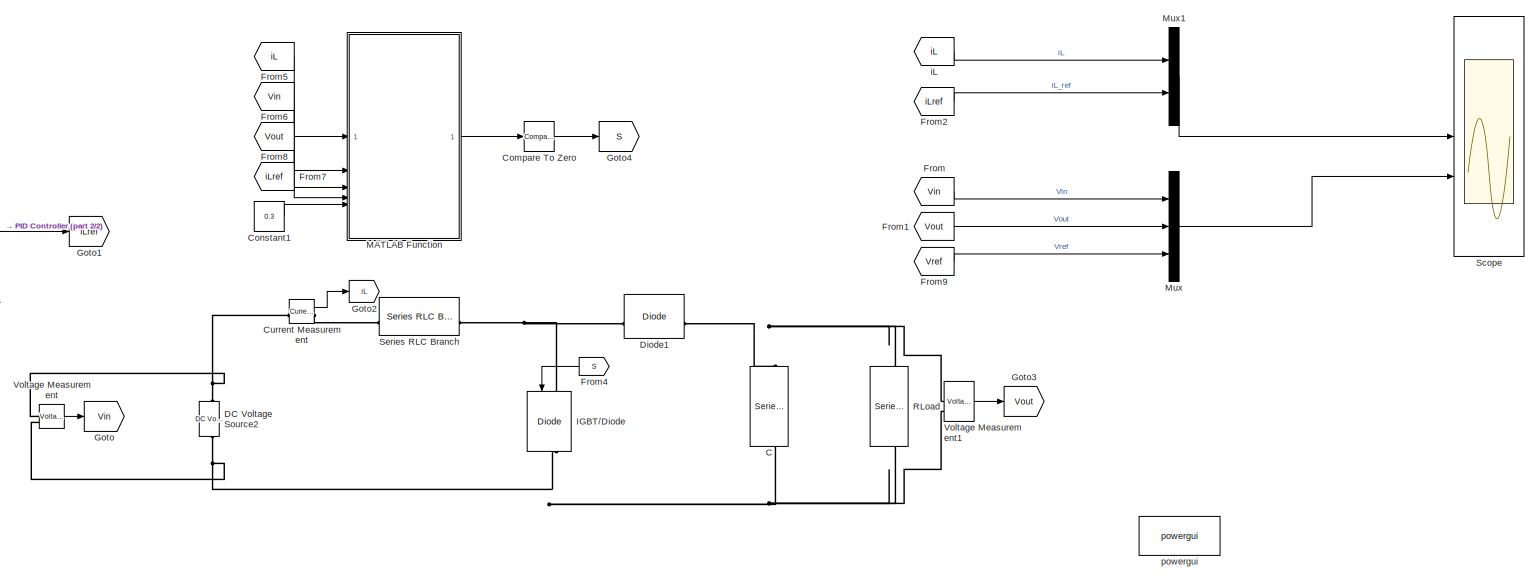
[diagram: root canvas - part 1/2, most of the canvas]
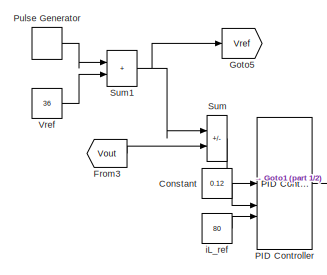
[diagram: root canvas - part 2/2, middle left region]
MODEL slx_9558a62b1926
KIND model
CONFIG AbsTol = auto
CONFIG EnableMultiTasking = off
CONFIG FixedStep = auto
CONFIG MaxStep = auto
CONFIG MinStep = auto
CONFIG RelTol = 1e-3
CONFIG SampleTimeConstraint = Unconstrained
CONFIG SolverName = VariableStepAuto
CONFIG StartTime = 0.0
CONFIG StopTime = inf
BLOCK [Reference] C  REF=spsSeriesRLCBranchLib/Series RLC Branch
  NameLocation = left
  SourceBlock = spsSeriesRLCBranchLib/Series RLC Branch
  SourceType = Series RLC Branch
BLOCK [Reference] Compare To Zero  REF=simulink/Logic and Bit
Operations/Compare
To Zero
  SourceBlock = simulink/Logic and Bit\nOperations/Compare\nTo Zero
  SourceType = Compare To Zero
BLOCK [Constant] Constant
  Value = 0.12
BLOCK [Constant] Constant1
  Value = 0.3
BLOCK [Reference] Current Measurement  REF=spsCurrentMeasurementLib/Current Measurement
  SourceBlock = spsCurrentMeasurementLib/Current Measurement
  SourceType = Current Measurement
  UserDataPersistent = on
BLOCK [Reference] DC Voltage Source2  REF=spsDCVoltageSourceLib/DC Voltage Source
  SourceBlock = spsDCVoltageSourceLib/DC Voltage Source
  SourceType = DC Voltage Source
BLOCK [Reference] Diode1  REF=spsDiodeLib/Diode
  SourceBlock = spsDiodeLib/Diode
  SourceType = Diode
BLOCK [From] From
  GotoTag = Vin
BLOCK [From] From1
  GotoTag = Vout
BLOCK [From] From2
  GotoTag = iLref
BLOCK [From] From3
  GotoTag = Vout
BLOCK [From] From4
  GotoTag = S
  NameLocation = top
BLOCK [From] From5
  GotoTag = iL
BLOCK [From] From6
  GotoTag = Vin
  IconDisplay = Signal name
BLOCK [From] From7
  GotoTag = iLref
BLOCK [From] From8
  GotoTag = Vout
BLOCK [From] From9
  GotoTag = Vref
  TagVisibility = global
BLOCK [Goto] Goto
  GotoTag = Vin
BLOCK [Goto] Goto1
  GotoTag = iLref
BLOCK [Goto] Goto2
  GotoTag = iL
BLOCK [Goto] Goto3
  GotoTag = Vout
BLOCK [Goto] Goto4
  GotoTag = S
BLOCK [Goto] Goto5
  GotoTag = Vref
  TagVisibility = global
BLOCK [Reference] IGBT//Diode  REF=spsIGBTDiodeLib/IGBT//Diode
  NameLocation = left
  SourceBlock = spsIGBTDiodeLib/IGBT//Diode
  SourceType = IGBT/Diode
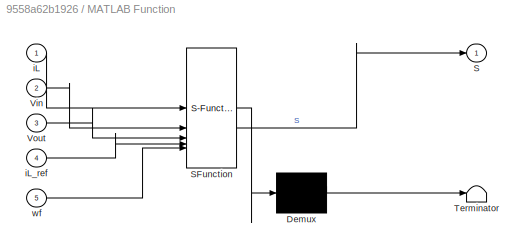
BLOCK [SubSystem] MATLAB Function
  ErrorFcn = Stateflow.Translate.translate
  PermitHierarchicalResolution = ExplicitOnly
  SFBlockType = MATLAB Function
  TreatAsAtomicUnit = on
BLOCK [Demux] MATLAB Function/ Demux 
  Outputs = 1
BLOCK [S-Function] MATLAB Function/ SFunction 
  EnableBusSupport = on
  FunctionName = sf_sfun
  PortCounts = [5 2]
  SFcnIsStateOwnerBlock = off
  SFunctionDeploymentMode = off
  Tag = Stateflow S-Function 2
BLOCK [Terminator] MATLAB Function/ Terminator 
BLOCK [Outport] MATLAB Function/S
BLOCK [Inport] MATLAB Function/Vin
  Port = 2
BLOCK [Inport] MATLAB Function/Vout
  Port = 3
BLOCK [Inport] MATLAB Function/iL
BLOCK [Inport] MATLAB Function/iL_ref
  Port = 4
BLOCK [Inport] MATLAB Function/wf
  Port = 5
BLOCK [Mux] Mux
  DisplayOption = bar
  Inputs = 3
BLOCK [Mux] Mux1
  DisplayOption = bar
  Inputs = 2
BLOCK [Reference] PID Controller  REF=slpidlib/PID Controller
  SourceBlock = slpidlib/PID Controller
  SourceType = PID 1dof
BLOCK [DiscretePulseGenerator] Pulse Generator
  Amplitude = 24
  Period = 0.6
  PulseType = Time based
  PulseWidth = 50
BLOCK [Reference] RLoad  REF=spsSeriesRLCBranchLib/Series RLC Branch
  NameLocation = left
  SourceBlock = spsSeriesRLCBranchLib/Series RLC Branch
  SourceType = Series RLC Branch
BLOCK [Scope] Scope
  Floating = off
  NumInputPorts = 2
  ScopeSpecificationString = Simulink.scopes.TimeScopeBlockCfg('CurrentConfiguration', extmgr.ConfigurationSet(extmgr.Configuration('Core','General UI',true),extmgr.Configuration('Core','Source UI',true),extmgr.Configuration('Sources','WiredSimulink',true),extmgr.Configuration('Visuals','Time Domain',true,'SerializedDisplays',{struct('MinYLimReal','0.01586','MaxYLimReal','8.42286','YLabelReal','','MinYLimMag','0.01586','MaxYL...<+2152ch>
BLOCK [Reference] Series RLC Branch  REF=spsSeriesRLCBranchLib/Series RLC Branch
  SourceBlock = spsSeriesRLCBranchLib/Series RLC Branch
  SourceType = Series RLC Branch
BLOCK [Sum] Sum
  IconShape = rectangular
  Inputs = |+-
BLOCK [Sum] Sum1
  IconShape = rectangular
  Inputs = |++
BLOCK [Reference] Voltage Measurement  REF=spsVoltageMeasurementLib/Voltage Measurement
  SourceBlock = spsVoltageMeasurementLib/Voltage Measurement
  SourceType = Voltage Measurement
  UserDataPersistent = on
BLOCK [Reference] Voltage Measurement1  REF=spsVoltageMeasurementLib/Voltage Measurement
  SourceBlock = spsVoltageMeasurementLib/Voltage Measurement
  SourceType = Voltage Measurement
  UserDataPersistent = on
BLOCK [Constant] Vref
  Value = 36
BLOCK [From] iL
  GotoTag = iL
BLOCK [Constant] iL_ref
  Value = 80
BLOCK [Reference] powergui  REF=spspowerguiLib/powergui
  Priority = 1
  SourceBlock = spspowerguiLib/powergui
  SourceType = PSB option menu block
LINE Compare To Zero:1 -> Goto4:1
LINE Constant1:1 -> MATLAB Function:5
LINE Constant:1 -> PID Controller:2
LINE Current Measurement:1 -> Goto2:1
LINE From1:1 -> Mux:2
LINE From2:1 -> Mux1:2
LINE From3:1 -> Sum:2
LINE From4:1 -> IGBT//Diode:1
LINE From5:1 -> MATLAB Function:1
LINE From6:1 -> MATLAB Function:2
LINE From7:1 -> MATLAB Function:4
LINE From8:1 -> MATLAB Function:3
LINE From9:1 -> Mux:3
LINE From:1 -> Mux:1
LINE MATLAB Function:1 -> Compare To Zero:1
LINE Mux1:1 -> Scope:1
LINE Mux:1 -> Scope:2
LINE PID Controller:1 -> Goto1:1
LINE Pulse Generator:1 -> Sum1:1
NET Sum1:1 -> Goto5:1, Sum:1
LINE Sum:1 -> PID Controller:1
LINE Voltage Measurement1:1 -> Goto3:1
LINE Voltage Measurement:1 -> Goto:1
LINE Vref:1 -> Sum1:2
LINE iL:1 -> Mux1:1
LINE iL_ref:1 -> PID Controller:3
PNET net1: C:LConn1 -- Diode1:RConn1 -- RLoad:LConn1 -- Voltage Measurement1:LConn1
PNET net2: C:RConn1 -- DC Voltage Source2:LConn1 -- IGBT//Diode:RConn1 -- RLoad:RConn1 -- Voltage Measurement1:LConn2 -- Voltage Measurement:LConn2
PNET net3: Current Measurement:LConn1 -- DC Voltage Source2:RConn1 -- Voltage Measurement:LConn1
PLINE Current Measurement:RConn1 -- Series RLC Branch:LConn1
PNET net4: Diode1:LConn1 -- IGBT//Diode:LConn1 -- Series RLC Branch:RConn1
note: NET lines group one-source signal fan-out (src -> all destinations, sorted); 1:1 wires keep LINE; PNET lines group multi-terminal physical nets as a canonical sorted terminal list (undirected conserving connections); 2-terminal nets keep the pairwise PLINE form
CHART MATLAB Function states=1 transitions=1
  STATE_LABEL 'eML_blk_kernel()'
  STATE_LABEL 'SCRIPT:\nfunction S = MPC_Boost(iL,Vin,Vout,iL_ref,wf)\nTs=10e-6;\nL=1e-3;\nRL=.2;\nStates=[1;0];\ng_op=1e6;\nn_op=1;\npersistent S_old;\nif isempty(S_old)\n    S_old=0;\nend\n\nfor n=1:2\n    iL_k1=(Ts/L)*(Vin-iL*RL-Vout*(1-States(n)))+iL;\n    g_sw=abs(States(n)-S_old);\n    g_iL=abs(iL_ref-iL_k1); %cost function\n    g=g_iL+g_sw*wf; %Total cost function\n    if (g<g_op)\n        n_op=n;\n        g_op=g;\n    end\nen...<+29ch>'
CHART  states=0 transitions=0
